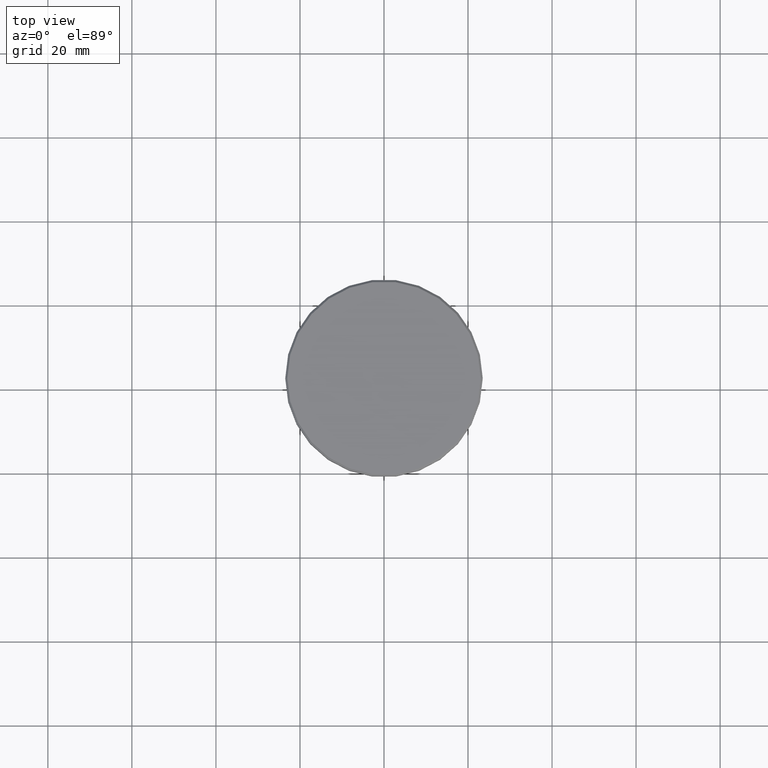
[diagram: clean part render]
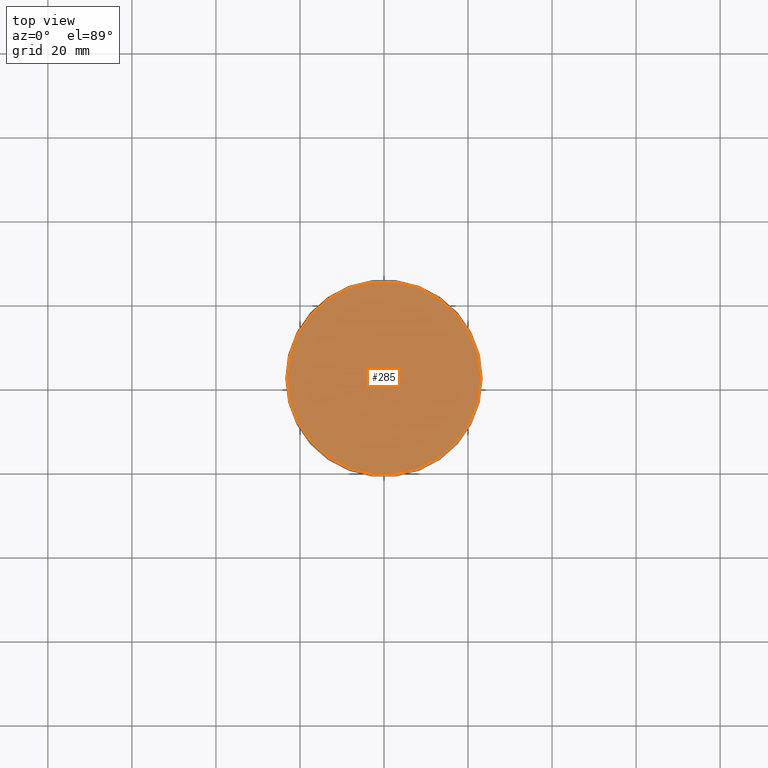
[diagram: same view with one face highlighted and labeled with its STEP entity id]
A machine part, top view. The second image highlights one B-rep face of the part: STEP entity #285.
In plain terms, the highlighted planar face has unit normal (0, -0, 1).
Its self-contained STEP definition (entity closure, byte-faithful):
#14 = DIRECTION ( 'NONE',  ( 1.000000000000000000, 0.000000000000000000, 0.000000000000000000 ) ) ;
#79 = CARTESIAN_POINT ( 'NONE',  ( 0.000000000000000000, 0.000000000000000000, 0.000000000000000000 ) ) ;
#101 = DIRECTION ( 'NONE',  ( 0.000000000000000000, -0.000000000000000000, 1.000000000000000000 ) ) ;
#238 = FACE_OUTER_BOUND ( 'NONE', #893, .T. ) ;
#246 = AXIS2_PLACEMENT_3D ( 'NONE', #341, #770, #597 ) ;
#274 = ORIENTED_EDGE ( 'NONE', *, *, #780, .T. ) ;
#285 = ADVANCED_FACE ( 'NONE', ( #238 ), #954, .T. ) ;
#341 = CARTESIAN_POINT ( 'NONE',  ( 0.000000000000000000, 0.000000000000000000, 0.000000000000000000 ) ) ;
#463 = CARTESIAN_POINT ( 'NONE',  ( -23.00000000000001066, 0.000000000000000000, 0.000000000000000000 ) ) ;
#597 = DIRECTION ( 'NONE',  ( 1.000000000000000000, 0.000000000000000000, 0.000000000000000000 ) ) ;
#732 = VERTEX_POINT ( 'NONE', #947 ) ;
#739 = CIRCLE ( 'NONE', #775, 23.00000000000001066 ) ;
#770 = DIRECTION ( 'NONE',  ( -0.000000000000000000, -0.000000000000000000, 1.000000000000000000 ) ) ;
#771 = AXIS2_PLACEMENT_3D ( 'NONE', #871, #101, #14 ) ;
#775 = AXIS2_PLACEMENT_3D ( 'NONE', #79, #988, #994 ) ;
#780 = EDGE_CURVE ( 'NONE', #967, #732, #866, .T. ) ;
#866 = CIRCLE ( 'NONE', #246, 23.00000000000001066 ) ;
#871 = CARTESIAN_POINT ( 'NONE',  ( 0.000000000000000000, 0.000000000000000000, 0.000000000000000000 ) ) ;
#880 = EDGE_CURVE ( 'NONE', #732, #967, #739, .T. ) ;
#893 = EDGE_LOOP ( 'NONE', ( #274, #998 ) ) ;
#947 = CARTESIAN_POINT ( 'NONE',  ( 23.00000000000001066, 2.847303808017596928E-15, 0.000000000000000000 ) ) ;
#954 = PLANE ( 'NONE',  #771 ) ;
#967 = VERTEX_POINT ( 'NONE', #463 ) ;
#988 = DIRECTION ( 'NONE',  ( -0.000000000000000000, -0.000000000000000000, 1.000000000000000000 ) ) ;
#994 = DIRECTION ( 'NONE',  ( 1.000000000000000000, 0.000000000000000000, 0.000000000000000000 ) ) ;
#998 = ORIENTED_EDGE ( 'NONE', *, *, #880, .T. ) ;